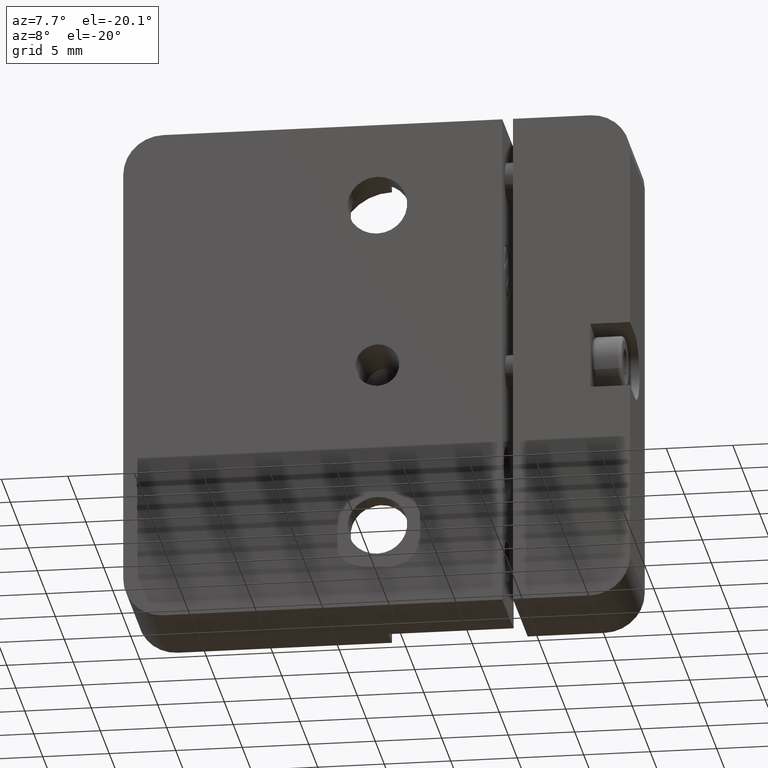
[diagram: clean part render]
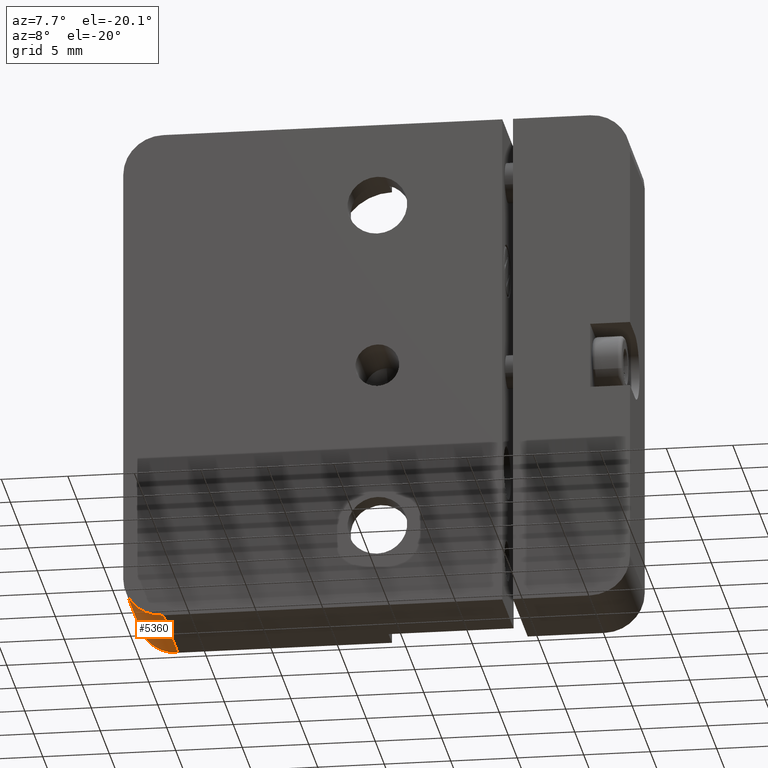
[diagram: same view with one face highlighted and labeled with its STEP entity id]
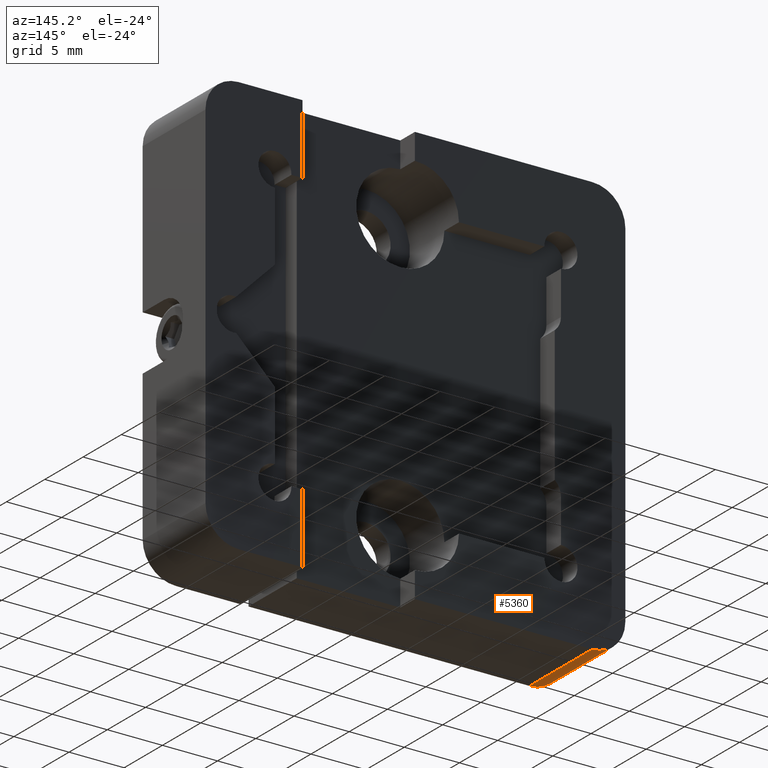
[diagram: same view with one face highlighted and labeled with its STEP entity id]
A machine part, auxiliary view. The second image highlights one B-rep face of the part: STEP entity #5360.
A second angle (auxiliary view) of the same face is appended — the face is thin or edge-on in the first view.
In plain terms, the highlighted cylindrical surface (partial cylindrical patch) has radius 3 mm, axis along (0, -1, 0).
Its self-contained STEP definition (entity closure, byte-faithful):
#148 = ORIENTED_EDGE ( 'NONE', *, *, #6313, .F. ) ;
#282 = ORIENTED_EDGE ( 'NONE', *, *, #1243, .F. ) ;
#604 = EDGE_CURVE ( 'NONE', #1303, #4966, #2201, .T. ) ;
#685 = DIRECTION ( 'NONE',  ( -0.000000000000000000, 1.000000000000000000, -0.000000000000000000 ) ) ;
#1243 = EDGE_CURVE ( 'NONE', #1279, #4528, #5190, .T. ) ;
#1276 = DIRECTION ( 'NONE',  ( 0.000000000000000000, 1.000000000000000000, 0.000000000000000000 ) ) ;
#1279 = VERTEX_POINT ( 'NONE', #5882 ) ;
#1302 = CARTESIAN_POINT ( 'NONE',  ( -19.05000000000000426, 4.127500000000000391, -16.05000000000000071 ) ) ;
#1303 = VERTEX_POINT ( 'NONE', #4342 ) ;
#1772 = DIRECTION ( 'NONE',  ( 0.000000000000000000, 0.000000000000000000, 1.000000000000000000 ) ) ;
#1822 = CARTESIAN_POINT ( 'NONE',  ( -16.05000000000000426, 4.072500000000000675, -16.05000000000000071 ) ) ;
#2047 = EDGE_CURVE ( 'NONE', #4966, #1279, #2899, .T. ) ;
#2201 = CIRCLE ( 'NONE', #3028, 2.999999999999999112 ) ;
#2561 = CARTESIAN_POINT ( 'NONE',  ( -16.05000000000000426, 4.127500000000000391, -16.05000000000000071 ) ) ;
#2613 = CARTESIAN_POINT ( 'NONE',  ( -16.05000000000000426, 4.127500000000000391, -19.05000000000000071 ) ) ;
#2899 = LINE ( 'NONE', #1302, #4561 ) ;
#3018 = DIRECTION ( 'NONE',  ( 0.000000000000000000, 0.000000000000000000, -1.000000000000000000 ) ) ;
#3028 = AXIS2_PLACEMENT_3D ( 'NONE', #1822, #1276, #3810 ) ;
#3577 = CARTESIAN_POINT ( 'NONE',  ( -19.05000000000000071, 4.072500000000000675, -16.05000000000000071 ) ) ;
#3810 = DIRECTION ( 'NONE',  ( 0.000000000000000000, 0.000000000000000000, 1.000000000000000000 ) ) ;
#3871 = DIRECTION ( 'NONE',  ( 0.000000000000000000, -1.000000000000000000, 0.000000000000000000 ) ) ;
#3917 = ORIENTED_EDGE ( 'NONE', *, *, #2047, .F. ) ;
#4034 = AXIS2_PLACEMENT_3D ( 'NONE', #4773, #6281, #1772 ) ;
#4342 = CARTESIAN_POINT ( 'NONE',  ( -16.05000000000000426, 4.072500000000000675, -19.05000000000000071 ) ) ;
#4437 = CARTESIAN_POINT ( 'NONE',  ( -16.05000000000000426, -4.127500000000000391, -19.05000000000000071 ) ) ;
#4528 = VERTEX_POINT ( 'NONE', #4437 ) ;
#4561 = VECTOR ( 'NONE', #3871, 1000.000000000000000 ) ;
#4773 = CARTESIAN_POINT ( 'NONE',  ( -16.05000000000000426, -4.127500000000000391, -16.05000000000000071 ) ) ;
#4966 = VERTEX_POINT ( 'NONE', #3577 ) ;
#5159 = LINE ( 'NONE', #2613, #5644 ) ;
#5190 = CIRCLE ( 'NONE', #4034, 2.999999999999999112 ) ;
#5360 = ADVANCED_FACE ( 'NONE', ( #5553 ), #6052, .T. ) ;
#5516 = DIRECTION ( 'NONE',  ( 0.000000000000000000, -1.000000000000000000, 0.000000000000000000 ) ) ;
#5553 = FACE_OUTER_BOUND ( 'NONE', #6062, .T. ) ;
#5644 = VECTOR ( 'NONE', #685, 1000.000000000000000 ) ;
#5882 = CARTESIAN_POINT ( 'NONE',  ( -19.05000000000000071, -4.127500000000000391, -16.05000000000000071 ) ) ;
#5995 = ORIENTED_EDGE ( 'NONE', *, *, #604, .F. ) ;
#6052 = CYLINDRICAL_SURFACE ( 'NONE', #6533, 2.999999999999999112 ) ;
#6062 = EDGE_LOOP ( 'NONE', ( #5995, #148, #282, #3917 ) ) ;
#6281 = DIRECTION ( 'NONE',  ( -0.000000000000000000, -1.000000000000000000, -0.000000000000000000 ) ) ;
#6313 = EDGE_CURVE ( 'NONE', #4528, #1303, #5159, .T. ) ;
#6533 = AXIS2_PLACEMENT_3D ( 'NONE', #2561, #5516, #3018 ) ;